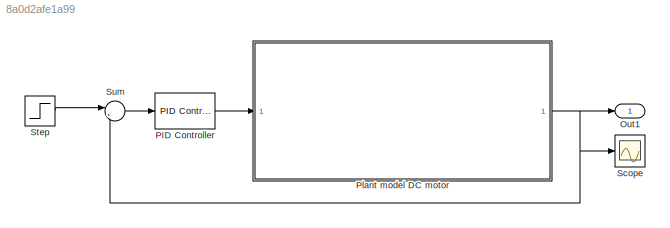
MODEL slx_8a0d2afe1a99
KIND model
CONFIG AbsTol = auto
CONFIG EnableMultiTasking = off
CONFIG FixedStep = auto
CONFIG MaxStep = auto
CONFIG MinStep = auto
CONFIG RelTol = 1e-3
CONFIG SampleTimeConstraint = Unconstrained
CONFIG Solver = ode45
CONFIG SolverName = ode45
CONFIG StartTime = 0.0
CONFIG StopTime = 3
BLOCK [Outport] Out1
BLOCK [Reference] PID Controller  REF=simulink/Continuous/PID Controller
  Ports = [1, 1]
  SourceBlock = simulink/Continuous/PID Controller
  SourceProductBaseCode = SL
  SourceType = PID 1dof
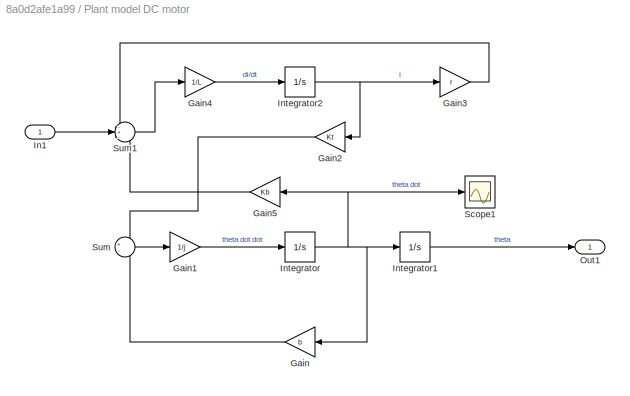
BLOCK [SubSystem] Plant model DC motor
  Ports = [1, 1]
  RequestExecContextInheritance = off
BLOCK [Gain] Plant model DC motor/Gain
  Gain = b
BLOCK [Gain] Plant model DC motor/Gain1
  Gain = 1/j
BLOCK [Gain] Plant model DC motor/Gain2
  Gain = Kt
BLOCK [Gain] Plant model DC motor/Gain3
  Gain = r
BLOCK [Gain] Plant model DC motor/Gain4
  Gain = 1/L
BLOCK [Gain] Plant model DC motor/Gain5
  Gain = Kb
BLOCK [Inport] Plant model DC motor/In1
BLOCK [Integrator] Plant model DC motor/Integrator
  Ports = [1, 1]
BLOCK [Integrator] Plant model DC motor/Integrator1
  Ports = [1, 1]
BLOCK [Integrator] Plant model DC motor/Integrator2
  Ports = [1, 1]
BLOCK [Outport] Plant model DC motor/Out1
BLOCK [Scope] Plant model DC motor/Scope1
  Floating = off
  NumInputPorts = 1
  Ports = [1]
  ScopeSpecificationString = Simulink.scopes.TimeScopeBlockCfg('CurrentConfiguration', extmgr.ConfigurationSet(extmgr.Configuration('Core','General UI',true),extmgr.Configuration('Core','Source UI',true),extmgr.Configuration('Sources','WiredSimulink',true,'DataLoggingVariableName','ScopeData1'),extmgr.Configuration('Visuals','Time Domain',true,'SerializedDisplays',{struct('MinYLimReal','-254.05644','MaxYLimReal','373.02955','...<+1436ch>
BLOCK [Sum] Plant model DC motor/Sum
  Inputs = +-
  Ports = [2, 1]
BLOCK [Sum] Plant model DC motor/Sum1
  Inputs = -+-
  Ports = [3, 1]
BLOCK [Scope] Scope
  Floating = off
  NumInputPorts = 1
  Ports = [1]
  ScopeSpecificationString = Simulink.scopes.TimeScopeBlockCfg('CurrentConfiguration', extmgr.ConfigurationSet(extmgr.Configuration('Core','General UI',true),extmgr.Configuration('Core','Source UI',true),extmgr.Configuration('Sources','WiredSimulink',true),extmgr.Configuration('Visuals','Time Domain',true,'SerializedDisplays',{struct('MinYLimReal','-0.2072','MaxYLimReal','1.86479','YLabelReal','','MinYLimMag','0.00000','MaxYL...<+1338ch>
BLOCK [Step] Step
  After = V
  SampleTime = 0
BLOCK [Sum] Sum
  Inputs = |+-
  Ports = [2, 1]
LINE PID Controller:1 -> Plant model DC motor:1
LINE Plant model DC motor/Gain1:1 -> Plant model DC motor/Integrator:1
LINE Plant model DC motor/Gain2:1 -> Plant model DC motor/Sum:1
LINE Plant model DC motor/Gain3:1 -> Plant model DC motor/Sum1:1
LINE Plant model DC motor/Gain4:1 -> Plant model DC motor/Integrator2:1
LINE Plant model DC motor/Gain5:1 -> Plant model DC motor/Sum1:3
LINE Plant model DC motor/Gain:1 -> Plant model DC motor/Sum:2
LINE Plant model DC motor/In1:1 -> Plant model DC motor/Sum1:2
LINE Plant model DC motor/Integrator1:1 -> Plant model DC motor/Out1:1
NET Plant model DC motor/Integrator2:1 -> Plant model DC motor/Gain2:1, Plant model DC motor/Gain3:1
NET Plant model DC motor/Integrator:1 -> Plant model DC motor/Gain5:1, Plant model DC motor/Gain:1, Plant model DC motor/Integrator1:1, Plant model DC motor/Scope1:1
LINE Plant model DC motor/Sum1:1 -> Plant model DC motor/Gain4:1
LINE Plant model DC motor/Sum:1 -> Plant model DC motor/Gain1:1
NET Plant model DC motor:1 -> Out1:1, Scope:1, Sum:2
LINE Step:1 -> Sum:1
LINE Sum:1 -> PID Controller:1
note: NET lines group one-source signal fan-out (src -> all destinations, sorted); 1:1 wires keep LINE
